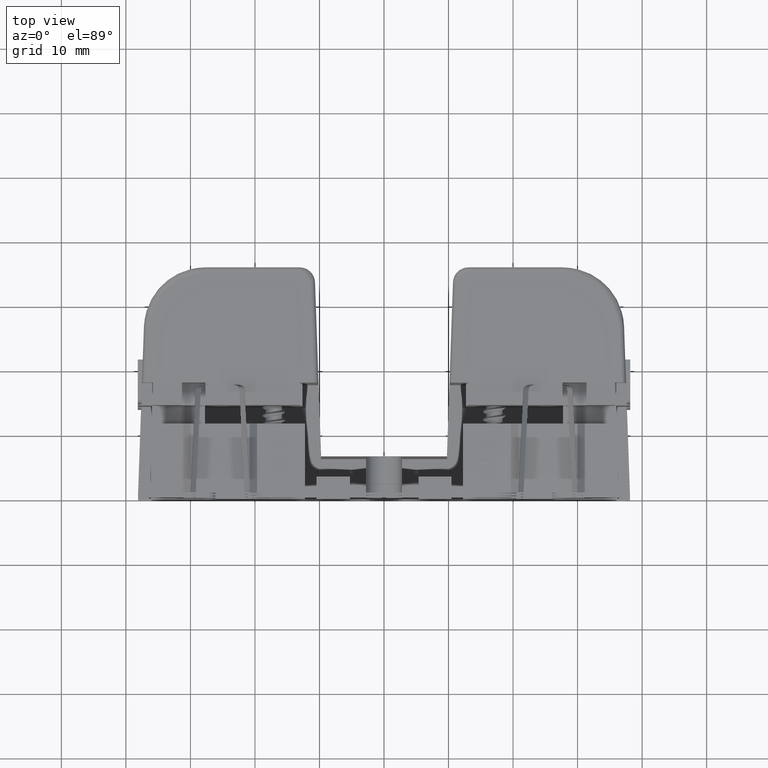
[diagram: clean part render]
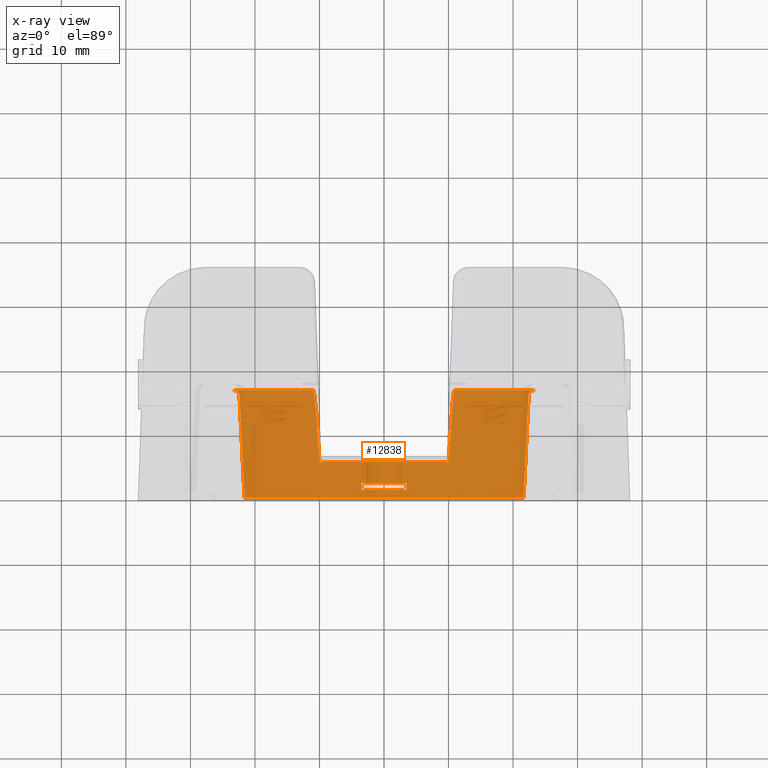
[diagram: x-ray — body ghosted, one internal face saturated and labeled with its STEP entity id]
A machine part, top view, then the same camera in x-ray: the body is ghosted and one INTERNAL B-rep face — a face not visible from any outside direction — is saturated and labeled: STEP entity #12838.
In plain terms, the highlighted planar face has unit normal (0, 0, -1).
Its self-contained STEP definition (entity closure, byte-faithful):
#1234 = EDGE_LOOP ( 'NONE', ( #99574, #68556, #61135, #18429, #122581, #90873, #4488, #120352, #48755, #116471 ) ) ;
#1796 = CARTESIAN_POINT ( 'NONE',  ( 0.4102892772347350700, 0.5035276966052570900, 0.04650000000000000000 ) ) ;
#1854 = EDGE_CURVE ( 'NONE', #60052, #122166, #25259, .T. ) ;
#2314 = CARTESIAN_POINT ( 'NONE',  ( 0.1375000000000000900, 0.0000000000000000000, 0.04650000000000000000 ) ) ;
#4488 = ORIENTED_EDGE ( 'NONE', *, *, #7648, .T. ) ;
#4872 = CARTESIAN_POINT ( 'NONE',  ( 0.8824669823608298800, 0.6270469849010751300, 0.04649999999999992300 ) ) ;
#5457 = CARTESIAN_POINT ( 'NONE',  ( 1.500000000000000200, 0.0000000000000000000, 0.04650000000000000000 ) ) ;
#5669 =( BOUNDED_CURVE ( )  B_SPLINE_CURVE ( 3, ( #16798, #6750, #66041, #26730 ),
 .UNSPECIFIED., .F., .F. ) 
 B_SPLINE_CURVE_WITH_KNOTS ( ( 4, 4 ),
 ( 0.03490658503989001200, 1.570796326794883700 ),
 .UNSPECIFIED. ) 
 CURVE ( )  GEOMETRIC_REPRESENTATION_ITEM ( )  RATIONAL_B_SPLINE_CURVE ( ( 1.000000000000000000, 0.8128932002257711600, 0.8128932002257711600, 1.000000000000000000 ) ) 
 REPRESENTATION_ITEM ( '' )  );
#6073 = LINE ( 'NONE', #4872, #78722 ) ;
#6651 = CARTESIAN_POINT ( 'NONE',  ( 1.500000000000000200, 0.0000000000000000000, 0.04650000000000000000 ) ) ;
#6750 = CARTESIAN_POINT ( 'NONE',  ( -0.8833105150937815600, 0.6441275854807315700, 0.04649999999999999300 ) ) ;
#7351 = CARTESIAN_POINT ( 'NONE',  ( -0.9248675442112799200, 0.6560000000000000300, 0.04650000000000000000 ) ) ;
#7648 = EDGE_CURVE ( 'NONE', #10323, #80943, #63883, .T. ) ;
#9725 = ORIENTED_EDGE ( 'NONE', *, *, #1854, .T. ) ;
#10323 = VERTEX_POINT ( 'NONE', #37590 ) ;
#10738 = VECTOR ( 'NONE', #24559, 39.37007874015748100 ) ;
#11734 = EDGE_CURVE ( 'NONE', #46535, #79582, #5669, .T. ) ;
#11816 = EDGE_CURVE ( 'NONE', #52152, #46535, #28670, .T. ) ;
#12838 = ADVANCED_FACE ( 'NONE', ( #123907, #45192 ), #75379, .T. ) ;
#13138 =( BOUNDED_CURVE ( )  B_SPLINE_CURVE ( 3, ( #99156, #109593, #119534, #60421 ),
 .UNSPECIFIED., .F., .F. ) 
 B_SPLINE_CURVE_WITH_KNOTS ( ( 4, 4 ),
 ( 0.0006090802385735875500, 0.7181660412217140100 ),
 .UNSPECIFIED. ) 
 CURVE ( )  GEOMETRIC_REPRESENTATION_ITEM ( )  RATIONAL_B_SPLINE_CURVE ( ( 1.000000000000000000, 0.9575509567925402100, 0.9575509567925402100, 1.000000000000000000 ) ) 
 REPRESENTATION_ITEM ( '' )  );
#14471 = LINE ( 'NONE', #107038, #87026 ) ;
#14617 = CARTESIAN_POINT ( 'NONE',  ( -0.1375000000000000900, 0.0000000000000000000, 0.04650000000000000000 ) ) ;
#14712 = VERTEX_POINT ( 'NONE', #121855 ) ;
#16706 = DIRECTION ( 'NONE',  ( -1.000000000000000000, 0.0000000000000000000, -0.0000000000000000000 ) ) ;
#16798 = CARTESIAN_POINT ( 'NONE',  ( -0.8824669823608298800, 0.6270469849010752400, 0.04649999999999999300 ) ) ;
#18429 = ORIENTED_EDGE ( 'NONE', *, *, #123733, .T. ) ;
#19752 = DIRECTION ( 'NONE',  ( 1.000000000000000000, -0.0000000000000000000, 0.0000000000000000000 ) ) ;
#23090 = EDGE_CURVE ( 'NONE', #14712, #44631, #13138, .T. ) ;
#24038 = CARTESIAN_POINT ( 'NONE',  ( 0.8824669823608298800, 0.6270469849010749100, 0.04649999999999998600 ) ) ;
#24559 = DIRECTION ( 'NONE',  ( -0.0000000000000000000, -1.000000000000000000, -0.0000000000000000000 ) ) ;
#25259 = LINE ( 'NONE', #2314, #74678 ) ;
#25614 = CARTESIAN_POINT ( 'NONE',  ( 0.1375000000000000400, 0.04700000000000000700, 0.04650000000000000000 ) ) ;
#26730 = CARTESIAN_POINT ( 'NONE',  ( -0.9248675442112799200, 0.6560000000000000300, 0.04650000000000000000 ) ) ;
#26979 = VERTEX_POINT ( 'NONE', #55124 ) ;
#28670 = LINE ( 'NONE', #66783, #101216 ) ;
#32086 = CARTESIAN_POINT ( 'NONE',  ( 0.4302952999153155700, 0.6560000000000000300, 0.04650000000000000000 ) ) ;
#37590 = CARTESIAN_POINT ( 'NONE',  ( 0.9248675442112800300, 0.6560000000000000300, 0.04650000000000002000 ) ) ;
#39958 = CARTESIAN_POINT ( 'NONE',  ( -0.1375000000000000400, 0.04700000000000000700, 0.04650000000000000000 ) ) ;
#39987 = CARTESIAN_POINT ( 'NONE',  ( -0.8824669823608298800, 0.6270469849010752400, 0.04649999999999999300 ) ) ;
#40208 = LINE ( 'NONE', #14617, #10738 ) ;
#41157 = CARTESIAN_POINT ( 'NONE',  ( 1.500000000000000200, 0.04699999999999999300, 0.04650000000000000000 ) ) ;
#41221 = CARTESIAN_POINT ( 'NONE',  ( -0.8515000000000015900, -1.333909163752977000E-019, 0.04650000000000010400 ) ) ;
#42198 = EDGE_CURVE ( 'NONE', #79582, #14712, #14471, .T. ) ;
#44631 = VERTEX_POINT ( 'NONE', #87359 ) ;
#45192 = FACE_BOUND ( 'NONE', #67039, .T. ) ;
#45332 = CARTESIAN_POINT ( 'NONE',  ( -0.1375000000000000400, 0.08699999999999999400, 0.04650000000000000000 ) ) ;
#46535 = VERTEX_POINT ( 'NONE', #39987 ) ;
#47212 = EDGE_CURVE ( 'NONE', #83145, #60052, #89100, .T. ) ;
#47659 = EDGE_CURVE ( 'NONE', #26979, #10323, #93421, .T. ) ;
#48085 = CARTESIAN_POINT ( 'NONE',  ( 1.500000000000000200, 0.08699999999999999400, 0.04650000000000000000 ) ) ;
#48649 = ORIENTED_EDGE ( 'NONE', *, *, #89704, .T. ) ;
#48755 = ORIENTED_EDGE ( 'NONE', *, *, #123005, .F. ) ;
#49377 = EDGE_CURVE ( 'NONE', #118260, #26979, #94241, .T. ) ;
#49820 = VECTOR ( 'NONE', #63441, 39.37007874015748100 ) ;
#52152 = VERTEX_POINT ( 'NONE', #41221 ) ;
#53437 = CARTESIAN_POINT ( 'NONE',  ( 0.8833105150937808900, 0.6441275854807315700, 0.04650000000000001400 ) ) ;
#55124 = CARTESIAN_POINT ( 'NONE',  ( 0.4302952999153155700, 0.6560000000000000300, 0.04650000000000000000 ) ) ;
#57831 = DIRECTION ( 'NONE',  ( 1.000000000000000000, -0.0000000000000000000, 0.0000000000000000000 ) ) ;
#58583 = LINE ( 'NONE', #60152, #104911 ) ;
#60052 = VERTEX_POINT ( 'NONE', #25614 ) ;
#60152 = CARTESIAN_POINT ( 'NONE',  ( 1.500000000000000200, 0.2179999999999996400, 0.04650000000000000000 ) ) ;
#60421 = CARTESIAN_POINT ( 'NONE',  ( -0.3946083140209541400, 0.2179999999999996400, 0.04650000000000000000 ) ) ;
#61135 = ORIENTED_EDGE ( 'NONE', *, *, #23090, .T. ) ;
#62921 = VECTOR ( 'NONE', #100533, 39.37007874015748100 ) ;
#63357 = CARTESIAN_POINT ( 'NONE',  ( 0.9006972032994290400, 0.6560000000000001400, 0.04650000000000001400 ) ) ;
#63441 = DIRECTION ( 'NONE',  ( 1.000000000000000000, 0.0000000000000000000, 0.0000000000000000000 ) ) ;
#63883 =( BOUNDED_CURVE ( )  B_SPLINE_CURVE ( 3, ( #83143, #63357, #53437, #24038 ),
 .UNSPECIFIED., .F., .F. ) 
 B_SPLINE_CURVE_WITH_KNOTS ( ( 4, 4 ),
 ( 4.712388980384689700, 6.248278722139705400 ),
 .UNSPECIFIED. ) 
 CURVE ( )  GEOMETRIC_REPRESENTATION_ITEM ( )  RATIONAL_B_SPLINE_CURVE ( ( 1.000000000000000000, 0.8128932002257661700, 0.8128932002257661700, 1.000000000000000000 ) ) 
 REPRESENTATION_ITEM ( '' )  );
#64142 = DIRECTION ( 'NONE',  ( -0.04932531220227890500, -0.9987827659587182900, 9.518654167343116700E-017 ) ) ;
#64151 = VECTOR ( 'NONE', #19752, 39.37007874015748100 ) ;
#66041 = CARTESIAN_POINT ( 'NONE',  ( -0.9006972032994290400, 0.6559999999999996900, 0.04649999999999999300 ) ) ;
#66049 = VERTEX_POINT ( 'NONE', #83199 ) ;
#66783 = CARTESIAN_POINT ( 'NONE',  ( -0.8515000000000012600, 0.0000000000000000000, 0.04650000000000000000 ) ) ;
#67039 = EDGE_LOOP ( 'NONE', ( #48649, #95869, #9725, #102054 ) ) ;
#68216 = VERTEX_POINT ( 'NONE', #45332 ) ;
#68556 = ORIENTED_EDGE ( 'NONE', *, *, #42198, .T. ) ;
#70027 = DIRECTION ( 'NONE',  ( 1.000000000000000000, -0.0000000000000000000, 0.0000000000000000000 ) ) ;
#74678 = VECTOR ( 'NONE', #120640, 39.37007874015748100 ) ;
#75109 = AXIS2_PLACEMENT_3D ( 'NONE', #6651, #75781, #16706 ) ;
#75379 = PLANE ( 'NONE',  #75109 ) ;
#75781 = DIRECTION ( 'NONE',  ( 0.0000000000000000000, 0.0000000000000000000, -1.000000000000000000 ) ) ;
#75988 = VECTOR ( 'NONE', #108040, 39.37007874015748100 ) ;
#78722 = VECTOR ( 'NONE', #64142, 39.37007874015748100 ) ;
#78879 = CARTESIAN_POINT ( 'NONE',  ( 1.500000000000000200, 0.6560000000000000300, 0.04650000000000000000 ) ) ;
#79582 = VERTEX_POINT ( 'NONE', #7351 ) ;
#80943 = VERTEX_POINT ( 'NONE', #107118 ) ;
#81300 = CARTESIAN_POINT ( 'NONE',  ( 0.3946083140209541400, 0.2179999999999995600, 0.04650000000000000000 ) ) ;
#83143 = CARTESIAN_POINT ( 'NONE',  ( 0.9248675442112800300, 0.6560000000000000300, 0.04650000000000002000 ) ) ;
#83145 = VERTEX_POINT ( 'NONE', #39958 ) ;
#83199 = CARTESIAN_POINT ( 'NONE',  ( 0.8515000000000012600, -3.414809992080329000E-017, 0.04649999999999999300 ) ) ;
#87026 = VECTOR ( 'NONE', #57831, 39.37007874015748100 ) ;
#87359 = CARTESIAN_POINT ( 'NONE',  ( -0.3946083140209541400, 0.2179999999999996400, 0.04650000000000000000 ) ) ;
#89100 = LINE ( 'NONE', #41157, #62921 ) ;
#89704 = EDGE_CURVE ( 'NONE', #68216, #83145, #40208, .T. ) ;
#90873 = ORIENTED_EDGE ( 'NONE', *, *, #47659, .T. ) ;
#91171 = CARTESIAN_POINT ( 'NONE',  ( 0.4227122839482717100, 0.6560000000000010300, 0.04650000000000000000 ) ) ;
#93421 = LINE ( 'NONE', #78879, #64151 ) ;
#94241 =( BOUNDED_CURVE ( )  B_SPLINE_CURVE ( 3, ( #81300, #1796, #91171, #32086 ),
 .UNSPECIFIED., .F., .F. ) 
 B_SPLINE_CURVE_WITH_KNOTS ( ( 4, 4 ),
 ( 2.423426612368087000, 3.140983573351227200 ),
 .UNSPECIFIED. ) 
 CURVE ( )  GEOMETRIC_REPRESENTATION_ITEM ( )  RATIONAL_B_SPLINE_CURVE ( ( 1.000000000000000000, 0.9575509567925402100, 0.9575509567925402100, 1.000000000000000000 ) ) 
 REPRESENTATION_ITEM ( '' )  );
#95869 = ORIENTED_EDGE ( 'NONE', *, *, #47212, .T. ) ;
#99156 = CARTESIAN_POINT ( 'NONE',  ( -0.4302952999153156200, 0.6560000000000001400, 0.04650000000000000000 ) ) ;
#99574 = ORIENTED_EDGE ( 'NONE', *, *, #11734, .T. ) ;
#100533 = DIRECTION ( 'NONE',  ( 1.000000000000000000, -0.0000000000000000000, 0.0000000000000000000 ) ) ;
#101216 = VECTOR ( 'NONE', #125870, 39.37007874015748100 ) ;
#102054 = ORIENTED_EDGE ( 'NONE', *, *, #112840, .T. ) ;
#102258 = LINE ( 'NONE', #48085, #75988 ) ;
#104911 = VECTOR ( 'NONE', #70027, 39.37007874015748100 ) ;
#107038 = CARTESIAN_POINT ( 'NONE',  ( 1.500000000000000200, 0.6560000000000000300, 0.04650000000000000000 ) ) ;
#107118 = CARTESIAN_POINT ( 'NONE',  ( 0.8824669823608298800, 0.6270469849010749100, 0.04649999999999998600 ) ) ;
#108040 = DIRECTION ( 'NONE',  ( -1.000000000000000000, 0.0000000000000000000, -0.0000000000000000000 ) ) ;
#108093 = CARTESIAN_POINT ( 'NONE',  ( 0.3946083140209541400, 0.2179999999999995600, 0.04650000000000000000 ) ) ;
#109593 = CARTESIAN_POINT ( 'NONE',  ( -0.4227122839482717100, 0.6559999999999979200, 0.04650000000000000000 ) ) ;
#112409 = CARTESIAN_POINT ( 'NONE',  ( 0.1375000000000000400, 0.08699999999999999400, 0.04650000000000000000 ) ) ;
#112840 = EDGE_CURVE ( 'NONE', #122166, #68216, #102258, .T. ) ;
#116471 = ORIENTED_EDGE ( 'NONE', *, *, #11816, .T. ) ;
#118260 = VERTEX_POINT ( 'NONE', #108093 ) ;
#119534 = CARTESIAN_POINT ( 'NONE',  ( -0.4102892772347349600, 0.5035276966052505400, 0.04650000000000000000 ) ) ;
#120352 = ORIENTED_EDGE ( 'NONE', *, *, #120889, .T. ) ;
#120640 = DIRECTION ( 'NONE',  ( 0.0000000000000000000, 1.000000000000000000, 0.0000000000000000000 ) ) ;
#120889 = EDGE_CURVE ( 'NONE', #80943, #66049, #6073, .T. ) ;
#121855 = CARTESIAN_POINT ( 'NONE',  ( -0.4302952999153156200, 0.6560000000000001400, 0.04650000000000000000 ) ) ;
#122166 = VERTEX_POINT ( 'NONE', #112409 ) ;
#122581 = ORIENTED_EDGE ( 'NONE', *, *, #49377, .T. ) ;
#123005 = EDGE_CURVE ( 'NONE', #52152, #66049, #125457, .T. ) ;
#123733 = EDGE_CURVE ( 'NONE', #44631, #118260, #58583, .T. ) ;
#123907 = FACE_OUTER_BOUND ( 'NONE', #1234, .T. ) ;
#125457 = LINE ( 'NONE', #5457, #49820 ) ;
#125870 = DIRECTION ( 'NONE',  ( -0.04932531220227890500, 0.9987827659587182900, 0.0000000000000000000 ) ) ;